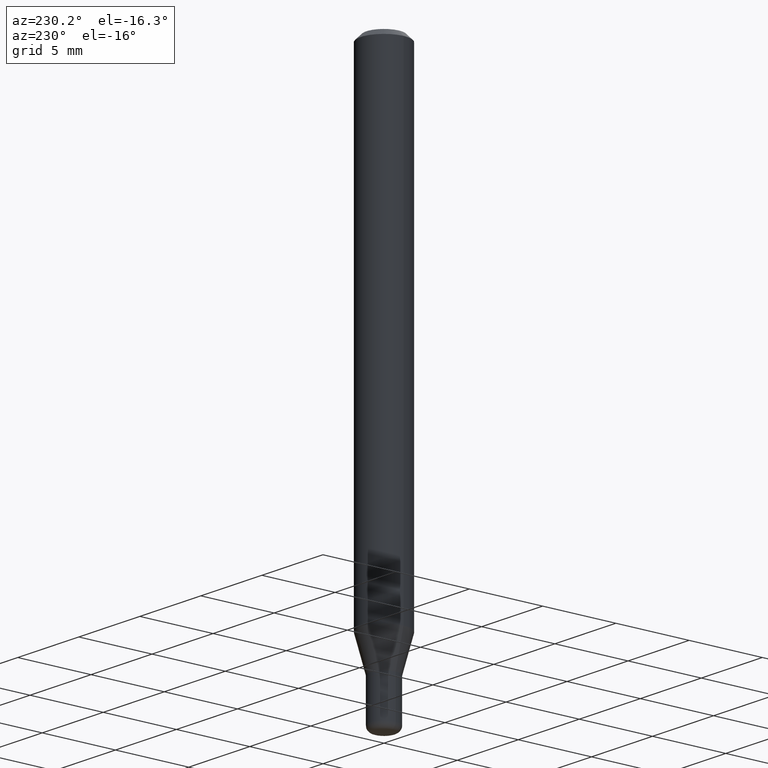
[diagram: clean part render]
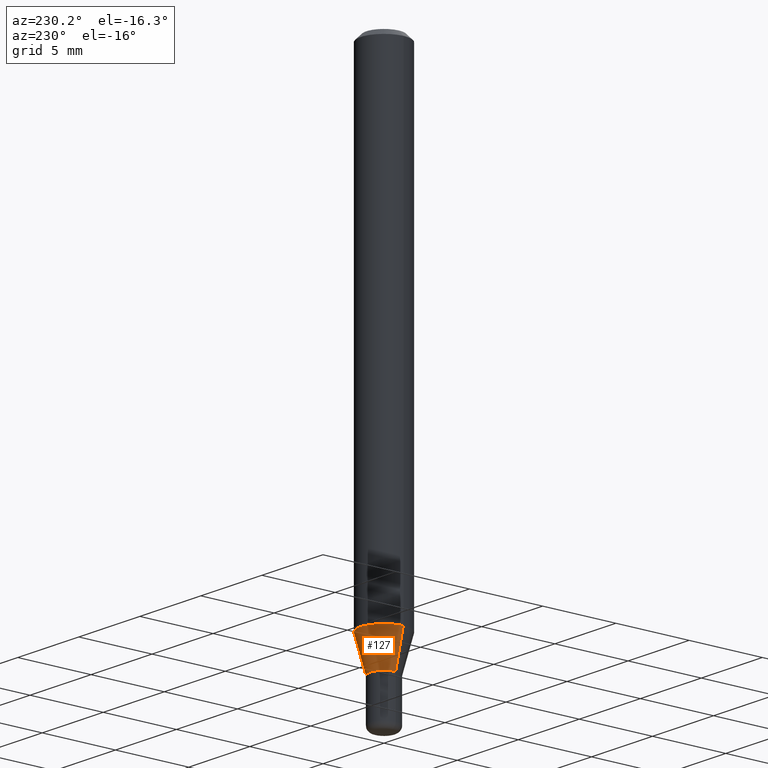
[diagram: same view with one face highlighted and labeled with its STEP entity id]
A machine part, auxiliary view. The second image highlights one B-rep face of the part: STEP entity #127.
In plain terms, the highlighted conical surface has half-angle 15 deg.
Its self-contained STEP definition (entity closure, byte-faithful):
#11 = CARTESIAN_POINT ( 'NONE',  ( -0.03749999999999999861, -4.541316277676974321E-15, -1.377000000000000002 ) ) ;
#31 = VECTOR ( 'NONE', #453, 39.37007874015748143 ) ;
#33 = CARTESIAN_POINT ( 'NONE',  ( -0.06250000000000000000, -4.037920949980918021E-15, -1.283698729810778039 ) ) ;
#59 = DIRECTION ( 'NONE',  ( -2.445468806185136597E-29, 3.491481338843145583E-15, 1.000000000000000000 ) ) ;
#62 = VECTOR ( 'NONE', #125, 39.37007874015748143 ) ;
#71 = AXIS2_PLACEMENT_3D ( 'NONE', #200, #158, #321 ) ;
#73 = AXIS2_PLACEMENT_3D ( 'NONE', #263, #59, #461 ) ;
#88 = EDGE_LOOP ( 'NONE', ( #462, #173, #165, #425 ) ) ;
#103 = CARTESIAN_POINT ( 'NONE',  ( 0.03749999999999999861, -5.069630904000246734E-15, -1.377000000000000002 ) ) ;
#125 = DIRECTION ( 'NONE',  ( 0.2588190451025203509, 1.565188264969630053E-15, 0.9659258262890684232 ) ) ;
#127 = ADVANCED_FACE ( 'NONE', ( #515 ), #166, .T. ) ;
#152 = CIRCLE ( 'NONE', #448, 0.06250000000000000000 ) ;
#156 = EDGE_CURVE ( 'NONE', #310, #491, #152, .T. ) ;
#158 = DIRECTION ( 'NONE',  ( -2.445468806185136597E-29, 3.491481338843145583E-15, 1.000000000000000000 ) ) ;
#165 = ORIENTED_EDGE ( 'NONE', *, *, #156, .F. ) ;
#166 = CONICAL_SURFACE ( 'NONE', #71, 0.03749999999999999861, 0.2617993877991490193 ) ;
#167 = LINE ( 'NONE', #330, #62 ) ;
#172 = LINE ( 'NONE', #11, #31 ) ;
#173 = ORIENTED_EDGE ( 'NONE', *, *, #209, .T. ) ;
#174 = DIRECTION ( 'NONE',  ( -2.445468806185136597E-29, 3.491481338843145583E-15, 1.000000000000000000 ) ) ;
#200 = CARTESIAN_POINT ( 'NONE',  ( 3.367410546116933466E-29, -4.807769803587011733E-15, -1.377000000000000002 ) ) ;
#209 = EDGE_CURVE ( 'NONE', #246, #491, #172, .T. ) ;
#245 = CIRCLE ( 'NONE', #73, 0.03749999999999999861 ) ;
#246 = VERTEX_POINT ( 'NONE', #374 ) ;
#247 = DIRECTION ( 'NONE',  ( 1.000000000000000000, -6.982962677686262766E-15, 0.000000000000000000 ) ) ;
#263 = CARTESIAN_POINT ( 'NONE',  ( 3.367410546116933466E-29, -4.807769803587011733E-15, -1.377000000000000002 ) ) ;
#302 = EDGE_CURVE ( 'NONE', #332, #310, #167, .T. ) ;
#310 = VERTEX_POINT ( 'NONE', #339 ) ;
#317 = EDGE_CURVE ( 'NONE', #332, #246, #245, .T. ) ;
#321 = DIRECTION ( 'NONE',  ( 1.000000000000000000, -6.982962677686268288E-15, 0.000000000000000000 ) ) ;
#330 = CARTESIAN_POINT ( 'NONE',  ( 0.03749999999999999861, -5.069630904000246734E-15, -1.377000000000000002 ) ) ;
#332 = VERTEX_POINT ( 'NONE', #103 ) ;
#339 = CARTESIAN_POINT ( 'NONE',  ( 0.06250000000000000000, -4.918445327186372307E-15, -1.283698729810778039 ) ) ;
#374 = CARTESIAN_POINT ( 'NONE',  ( -0.03749999999999999861, -4.289618613828946171E-15, -1.377000000000000002 ) ) ;
#425 = ORIENTED_EDGE ( 'NONE', *, *, #302, .F. ) ;
#448 = AXIS2_PLACEMENT_3D ( 'NONE', #488, #174, #247 ) ;
#453 = DIRECTION ( 'NONE',  ( -0.2588190451025203509, 5.211531920934543942E-15, 0.9659258262890684232 ) ) ;
#461 = DIRECTION ( 'NONE',  ( 1.000000000000000000, -6.982962677686268288E-15, 0.000000000000000000 ) ) ;
#462 = ORIENTED_EDGE ( 'NONE', *, *, #317, .T. ) ;
#488 = CARTESIAN_POINT ( 'NONE',  ( 3.139245200291739433E-29, -4.482010159830980638E-15, -1.283698729810778039 ) ) ;
#491 = VERTEX_POINT ( 'NONE', #33 ) ;
#515 = FACE_OUTER_BOUND ( 'NONE', #88, .T. ) ;